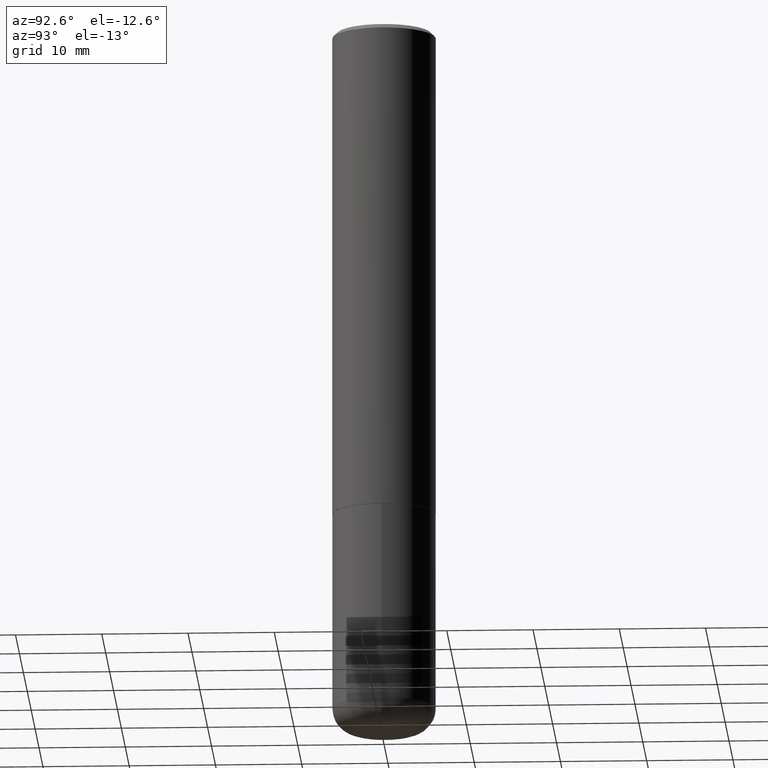
[diagram: clean part render]
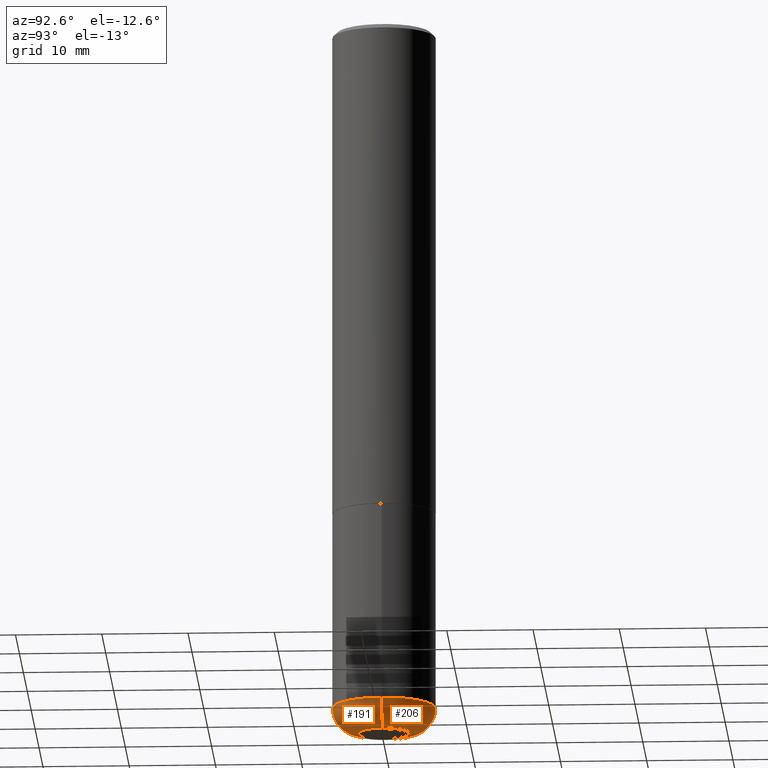
[diagram: same view with one multi-face feature highlighted, each face labeled with its STEP entity id]
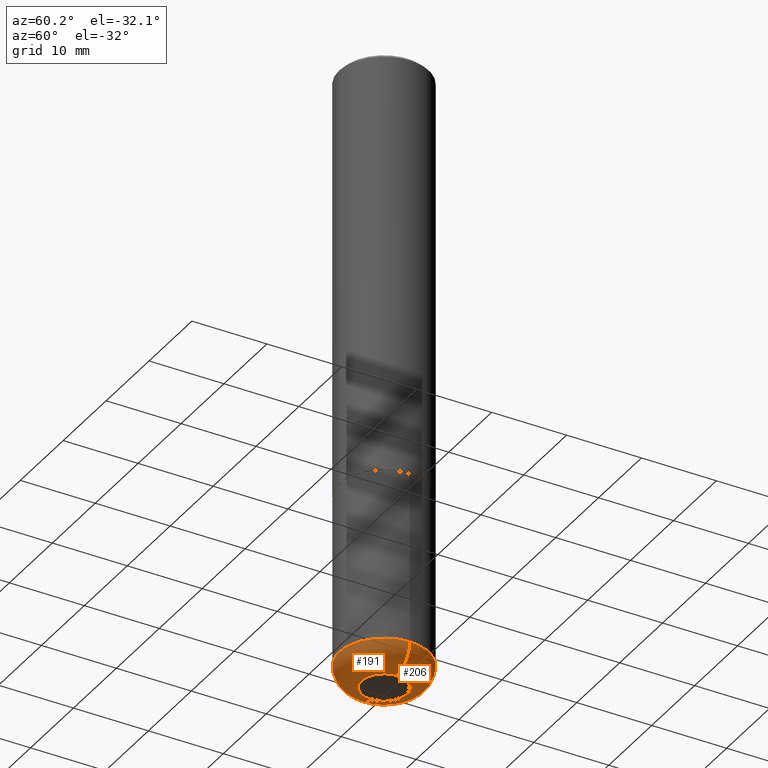
[diagram: same view with one multi-face feature highlighted, each face labeled with its STEP entity id]
A machine part, auxiliary view. The highlighted faces form ONE feature: a constant-radius fillet chain: 2 tangent blend faces with common blend radius 2.9997 mm. The faces share edges in the B-rep.
A second angle (auxiliary view) of the same feature is appended — it is thin or edge-on in the first view.
Their STEP definitions:
[1] entity #206 (Torus):
#24 = ORIENTED_EDGE ( 'NONE', *, *, #110, .F. ) ;
#25 = EDGE_CURVE ( 'NONE', #372, #239, #63, .T. ) ;
#37 = CARTESIAN_POINT ( 'NONE',  ( -0.2361999999999998823, -9.318467682955017493E-15, -3.149600000000000399 ) ) ;
#53 = CARTESIAN_POINT ( 'NONE',  ( 7.991058417971169471E-29, -1.140911357093774486E-14, -3.267699999999999605 ) ) ;
#55 = AXIS2_PLACEMENT_3D ( 'NONE', #228, #387, #326 ) ;
#63 = CIRCLE ( 'NONE', #100, 0.2362000000000000210 ) ;
#77 = TOROIDAL_SURFACE ( 'NONE', #369, 0.1180999999999999966, 0.1180999999999997607 ) ;
#87 = CIRCLE ( 'NONE', #108, 0.1180999999999997607 ) ;
#100 = AXIS2_PLACEMENT_3D ( 'NONE', #352, #325, #347 ) ;
#108 = AXIS2_PLACEMENT_3D ( 'NONE', #383, #226, #354 ) ;
#110 = EDGE_CURVE ( 'NONE', #213, #372, #87, .T. ) ;
#122 = CARTESIAN_POINT ( 'NONE',  ( 0.2361999999999998823, -1.264614540928986883E-14, -3.149600000000000399 ) ) ;
#149 = ORIENTED_EDGE ( 'NONE', *, *, #25, .F. ) ;
#179 = VERTEX_POINT ( 'NONE', #222 ) ;
#180 = DIRECTION ( 'NONE',  ( 1.000000000000000000, -6.982962677686272233E-15, 0.000000000000000000 ) ) ;
#185 = DIRECTION ( 'NONE',  ( -2.445468806185136597E-29, 3.491481338843145583E-15, 1.000000000000000000 ) ) ;
#193 = EDGE_LOOP ( 'NONE', ( #309, #398, #149, #24 ) ) ;
#195 = EDGE_CURVE ( 'NONE', #179, #239, #256, .T. ) ;
#206 = ADVANCED_FACE ( 'NONE', ( #332 ), #77, .T. ) ;
#213 = VERTEX_POINT ( 'NONE', #389 ) ;
#218 = AXIS2_PLACEMENT_3D ( 'NONE', #53, #185, #180 ) ;
#222 = CARTESIAN_POINT ( 'NONE',  ( -0.1181000000000000383, -9.944215141480041685E-15, -3.267699999999999605 ) ) ;
#226 = DIRECTION ( 'NONE',  ( -6.982962677686266711E-15, -1.000000000000000000, 3.491481338843145583E-15 ) ) ;
#228 = CARTESIAN_POINT ( 'NONE',  ( -0.1180999999999999966, -1.015761865388769332E-14, -3.149600000000000399 ) ) ;
#239 = VERTEX_POINT ( 'NONE', #37 ) ;
#256 = CIRCLE ( 'NONE', #55, 0.1180999999999997607 ) ;
#293 = DIRECTION ( 'NONE',  ( -2.445468806185136597E-29, 3.491481338843145583E-15, 1.000000000000000000 ) ) ;
#309 = ORIENTED_EDGE ( 'NONE', *, *, #362, .T. ) ;
#325 = DIRECTION ( 'NONE',  ( -2.445468806185136597E-29, 3.491481338843145583E-15, 1.000000000000000000 ) ) ;
#326 = DIRECTION ( 'NONE',  ( -1.000000000000000000, 7.105427357601001859E-15, 0.000000000000000000 ) ) ;
#332 = FACE_OUTER_BOUND ( 'NONE', #193, .T. ) ;
#347 = DIRECTION ( 'NONE',  ( 1.000000000000000000, -6.982962677686264344E-15, 0.000000000000000000 ) ) ;
#352 = CARTESIAN_POINT ( 'NONE',  ( 7.702248551960706711E-29, -1.099676962482037231E-14, -3.149600000000000399 ) ) ;
#354 = DIRECTION ( 'NONE',  ( 1.000000000000000000, -6.982962677686270655E-15, 0.000000000000000000 ) ) ;
#362 = EDGE_CURVE ( 'NONE', #213, #179, #388, .T. ) ;
#369 = AXIS2_PLACEMENT_3D ( 'NONE', #415, #293, #385 ) ;
#372 = VERTEX_POINT ( 'NONE', #122 ) ;
#383 = CARTESIAN_POINT ( 'NONE',  ( 0.1180999999999999966, -1.182145751705512057E-14, -3.149600000000000399 ) ) ;
#385 = DIRECTION ( 'NONE',  ( 1.000000000000000000, -6.982962677686263555E-15, 4.883557194083111780E-29 ) ) ;
#387 = DIRECTION ( 'NONE',  ( 7.105427357601001859E-15, 1.000000000000000000, -3.491481338843145583E-15 ) ) ;
#388 = CIRCLE ( 'NONE', #218, 0.1181000000000000105 ) ;
#389 = CARTESIAN_POINT ( 'NONE',  ( 0.1181000000000000105, -1.223380146317249313E-14, -3.267699999999999605 ) ) ;
#398 = ORIENTED_EDGE ( 'NONE', *, *, #195, .T. ) ;
#415 = CARTESIAN_POINT ( 'NONE',  ( 7.702248551960706711E-29, -1.099676962482037231E-14, -3.149600000000000399 ) ) ;
[2] entity #191 (Torus):
#16 = EDGE_CURVE ( 'NONE', #179, #213, #304, .T. ) ;
#20 = TOROIDAL_SURFACE ( 'NONE', #320, 0.1180999999999999966, 0.1180999999999997607 ) ;
#33 = FACE_OUTER_BOUND ( 'NONE', #302, .T. ) ;
#37 = CARTESIAN_POINT ( 'NONE',  ( -0.2361999999999998823, -9.318467682955017493E-15, -3.149600000000000399 ) ) ;
#45 = DIRECTION ( 'NONE',  ( -2.445468806185136597E-29, 3.491481338843145583E-15, 1.000000000000000000 ) ) ;
#55 = AXIS2_PLACEMENT_3D ( 'NONE', #228, #387, #326 ) ;
#71 = DIRECTION ( 'NONE',  ( 1.000000000000000000, -6.982962677686263555E-15, 4.883557194083111780E-29 ) ) ;
#82 = DIRECTION ( 'NONE',  ( 1.000000000000000000, -6.982962677686264344E-15, 0.000000000000000000 ) ) ;
#87 = CIRCLE ( 'NONE', #108, 0.1180999999999997607 ) ;
#108 = AXIS2_PLACEMENT_3D ( 'NONE', #383, #226, #354 ) ;
#109 = AXIS2_PLACEMENT_3D ( 'NONE', #120, #45, #82 ) ;
#110 = EDGE_CURVE ( 'NONE', #213, #372, #87, .T. ) ;
#119 = ORIENTED_EDGE ( 'NONE', *, *, #110, .T. ) ;
#120 = CARTESIAN_POINT ( 'NONE',  ( 7.702248551960706711E-29, -1.099676962482037231E-14, -3.149600000000000399 ) ) ;
#122 = CARTESIAN_POINT ( 'NONE',  ( 0.2361999999999998823, -1.264614540928986883E-14, -3.149600000000000399 ) ) ;
#134 = DIRECTION ( 'NONE',  ( 1.000000000000000000, -6.982962677686272233E-15, 0.000000000000000000 ) ) ;
#155 = ORIENTED_EDGE ( 'NONE', *, *, #411, .F. ) ;
#163 = AXIS2_PLACEMENT_3D ( 'NONE', #360, #328, #134 ) ;
#179 = VERTEX_POINT ( 'NONE', #222 ) ;
#184 = ORIENTED_EDGE ( 'NONE', *, *, #195, .F. ) ;
#191 = ADVANCED_FACE ( 'NONE', ( #33 ), #20, .T. ) ;
#195 = EDGE_CURVE ( 'NONE', #179, #239, #256, .T. ) ;
#203 = CIRCLE ( 'NONE', #109, 0.2362000000000000210 ) ;
#208 = ORIENTED_EDGE ( 'NONE', *, *, #16, .T. ) ;
#213 = VERTEX_POINT ( 'NONE', #389 ) ;
#222 = CARTESIAN_POINT ( 'NONE',  ( -0.1181000000000000383, -9.944215141480041685E-15, -3.267699999999999605 ) ) ;
#226 = DIRECTION ( 'NONE',  ( -6.982962677686266711E-15, -1.000000000000000000, 3.491481338843145583E-15 ) ) ;
#228 = CARTESIAN_POINT ( 'NONE',  ( -0.1180999999999999966, -1.015761865388769332E-14, -3.149600000000000399 ) ) ;
#239 = VERTEX_POINT ( 'NONE', #37 ) ;
#256 = CIRCLE ( 'NONE', #55, 0.1180999999999997607 ) ;
#266 = DIRECTION ( 'NONE',  ( -2.445468806185136597E-29, 3.491481338843145583E-15, 1.000000000000000000 ) ) ;
#302 = EDGE_LOOP ( 'NONE', ( #184, #208, #119, #155 ) ) ;
#304 = CIRCLE ( 'NONE', #163, 0.1181000000000000105 ) ;
#320 = AXIS2_PLACEMENT_3D ( 'NONE', #331, #266, #71 ) ;
#326 = DIRECTION ( 'NONE',  ( -1.000000000000000000, 7.105427357601001859E-15, 0.000000000000000000 ) ) ;
#328 = DIRECTION ( 'NONE',  ( -2.445468806185136597E-29, 3.491481338843145583E-15, 1.000000000000000000 ) ) ;
#331 = CARTESIAN_POINT ( 'NONE',  ( 7.702248551960706711E-29, -1.099676962482037231E-14, -3.149600000000000399 ) ) ;
#354 = DIRECTION ( 'NONE',  ( 1.000000000000000000, -6.982962677686270655E-15, 0.000000000000000000 ) ) ;
#360 = CARTESIAN_POINT ( 'NONE',  ( 7.991058417971169471E-29, -1.140911357093774486E-14, -3.267699999999999605 ) ) ;
#372 = VERTEX_POINT ( 'NONE', #122 ) ;
#383 = CARTESIAN_POINT ( 'NONE',  ( 0.1180999999999999966, -1.182145751705512057E-14, -3.149600000000000399 ) ) ;
#387 = DIRECTION ( 'NONE',  ( 7.105427357601001859E-15, 1.000000000000000000, -3.491481338843145583E-15 ) ) ;
#389 = CARTESIAN_POINT ( 'NONE',  ( 0.1181000000000000105, -1.223380146317249313E-14, -3.267699999999999605 ) ) ;
#411 = EDGE_CURVE ( 'NONE', #239, #372, #203, .T. ) ;